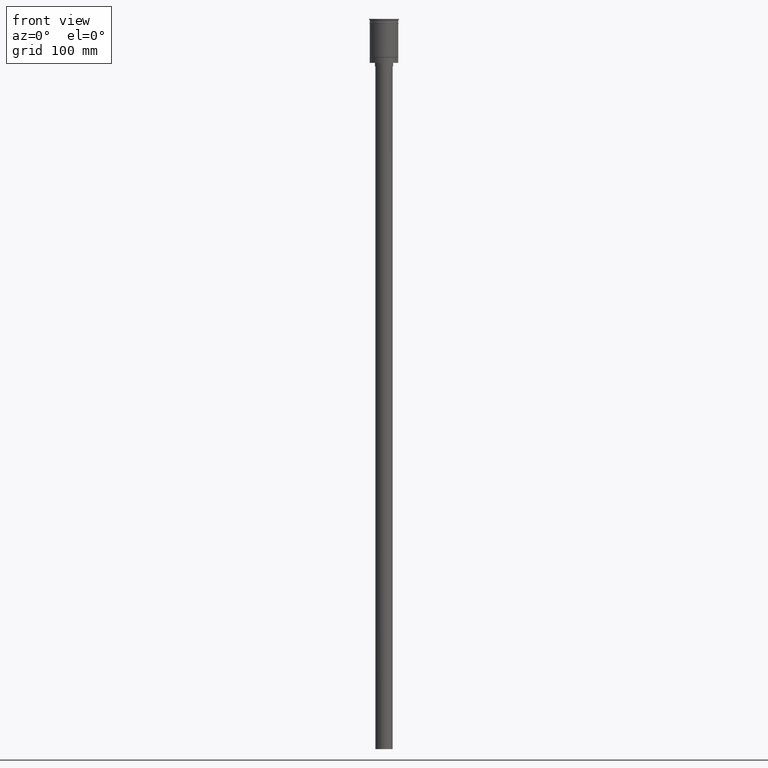
[diagram: clean part render]
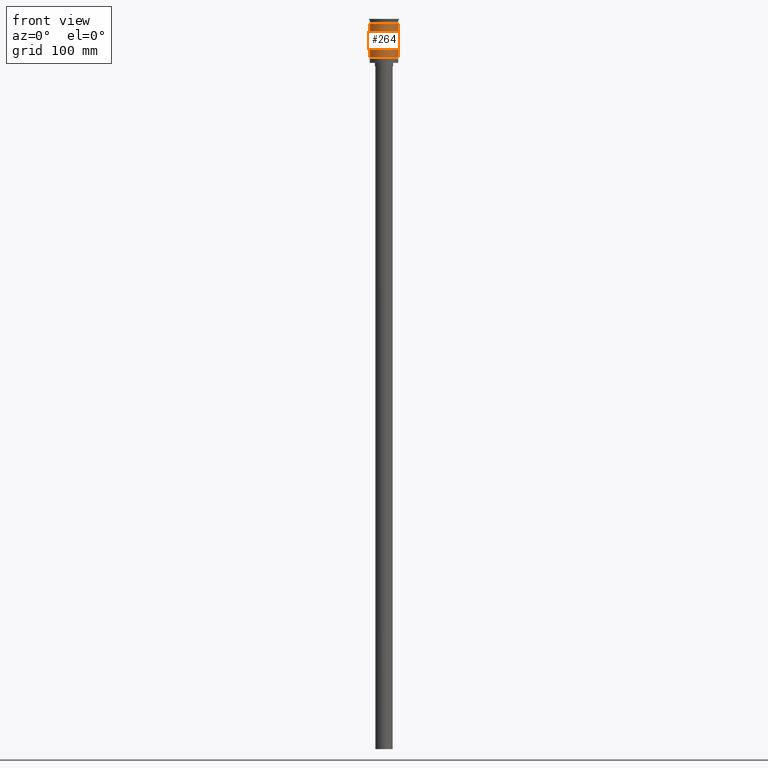
[diagram: same view with one face highlighted and labeled with its STEP entity id]
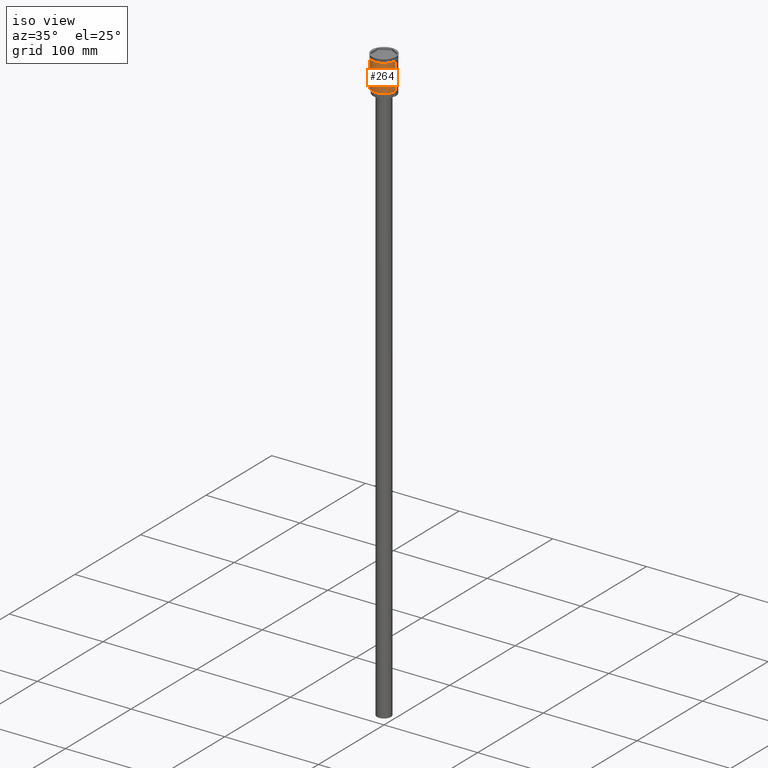
[diagram: same view with one face highlighted and labeled with its STEP entity id]
A machine part, front view. The second image highlights one B-rep face of the part: STEP entity #264.
A second angle (iso view) of the same face is appended — the face is thin or edge-on in the first view.
In plain terms, the highlighted cylindrical surface (edge-blend (fillet) strip) has radius 12.5 mm, axis along (-0, -0, 1).
Its self-contained STEP definition (entity closure, byte-faithful):
#4 = AXIS2_PLACEMENT_3D ( 'NONE', #584, #1587, #718 ) ;
#99 = CYLINDRICAL_SURFACE ( 'NONE', #4, 12.49999999999999645 ) ;
#109 = CARTESIAN_POINT ( 'NONE',  ( -12.50000000000000000, 1.530808498934191521E-15, -3.999999999999996447 ) ) ;
#167 = EDGE_LOOP ( 'NONE', ( #1515, #982, #519, #759 ) ) ;
#226 = FACE_OUTER_BOUND ( 'NONE', #167, .T. ) ;
#260 = CARTESIAN_POINT ( 'NONE',  ( -12.49999999999999289, 0.000000000000000000, -33.30000000000005400 ) ) ;
#264 = ADVANCED_FACE ( 'NONE', ( #226 ), #99, .T. ) ;
#284 = VERTEX_POINT ( 'NONE', #109 ) ;
#304 = LINE ( 'NONE', #1297, #386 ) ;
#323 = DIRECTION ( 'NONE',  ( -0.000000000000000000, -0.000000000000000000, 1.000000000000000000 ) ) ;
#369 = VERTEX_POINT ( 'NONE', #778 ) ;
#386 = VECTOR ( 'NONE', #323, 1000.000000000000000 ) ;
#508 = CIRCLE ( 'NONE', #1067, 12.49999999999999645 ) ;
#519 = ORIENTED_EDGE ( 'NONE', *, *, #1599, .T. ) ;
#584 = CARTESIAN_POINT ( 'NONE',  ( 0.000000000000000000, 0.000000000000000000, 0.000000000000000000 ) ) ;
#598 = DIRECTION ( 'NONE',  ( -0.000000000000000000, -0.000000000000000000, 1.000000000000000000 ) ) ;
#718 = DIRECTION ( 'NONE',  ( 1.000000000000000000, 0.000000000000000000, 0.000000000000000000 ) ) ;
#722 = AXIS2_PLACEMENT_3D ( 'NONE', #1560, #1548, #793 ) ;
#759 = ORIENTED_EDGE ( 'NONE', *, *, #1542, .F. ) ;
#778 = CARTESIAN_POINT ( 'NONE',  ( 12.49999999999999645, 1.530808498934191127E-15, -33.30000000000005400 ) ) ;
#791 = LINE ( 'NONE', #1559, #1225 ) ;
#793 = DIRECTION ( 'NONE',  ( 1.000000000000000000, 0.000000000000000000, 0.000000000000000000 ) ) ;
#877 = CARTESIAN_POINT ( 'NONE',  ( 0.000000000000000000, 0.000000000000000000, -33.30000000000005400 ) ) ;
#945 = DIRECTION ( 'NONE',  ( -0.000000000000000000, -0.000000000000000000, 1.000000000000000000 ) ) ;
#982 = ORIENTED_EDGE ( 'NONE', *, *, #990, .T. ) ;
#990 = EDGE_CURVE ( 'NONE', #992, #369, #508, .T. ) ;
#992 = VERTEX_POINT ( 'NONE', #260 ) ;
#1067 = AXIS2_PLACEMENT_3D ( 'NONE', #877, #598, #1384 ) ;
#1225 = VECTOR ( 'NONE', #945, 1000.000000000000000 ) ;
#1275 = EDGE_CURVE ( 'NONE', #992, #284, #791, .T. ) ;
#1297 = CARTESIAN_POINT ( 'NONE',  ( 12.49999999999999645, 0.000000000000000000, 0.000000000000000000 ) ) ;
#1312 = CARTESIAN_POINT ( 'NONE',  ( 12.49999999999999822, 0.000000000000000000, -3.999999999999996447 ) ) ;
#1357 = CIRCLE ( 'NONE', #722, 12.49999999999999822 ) ;
#1384 = DIRECTION ( 'NONE',  ( -1.000000000000000000, 0.000000000000000000, 0.000000000000000000 ) ) ;
#1515 = ORIENTED_EDGE ( 'NONE', *, *, #1275, .F. ) ;
#1532 = VERTEX_POINT ( 'NONE', #1312 ) ;
#1542 = EDGE_CURVE ( 'NONE', #284, #1532, #1357, .T. ) ;
#1548 = DIRECTION ( 'NONE',  ( -0.000000000000000000, -0.000000000000000000, 1.000000000000000000 ) ) ;
#1559 = CARTESIAN_POINT ( 'NONE',  ( -12.49999999999999645, 1.530808498934191127E-15, 0.000000000000000000 ) ) ;
#1560 = CARTESIAN_POINT ( 'NONE',  ( 0.000000000000000000, 0.000000000000000000, -3.999999999999996447 ) ) ;
#1587 = DIRECTION ( 'NONE',  ( -0.000000000000000000, -0.000000000000000000, 1.000000000000000000 ) ) ;
#1599 = EDGE_CURVE ( 'NONE', #369, #1532, #304, .T. ) ;